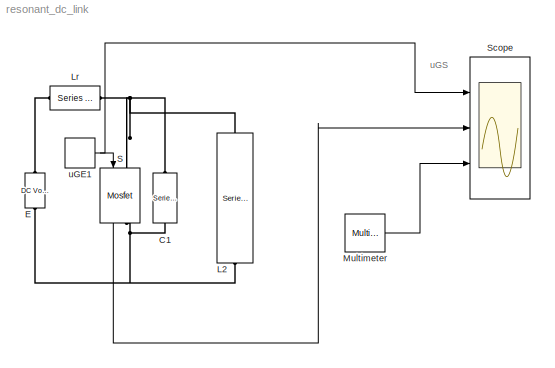
MODEL resonant_dc_link
KIND model
BLOCK [Reference] C1  REF=powerlib/Elements/Series RLC Branch
  AttributesFormatString = \\n
  Capacitance = 1e-6
  Inductance = 0
  LConnTagsString = __new0
  LeftPortType = p1
  Measurements = Branch voltage
  PhysicalDomain = powersysdomain
  Ports = [0, 0, 0, 0, 0, 1, 1]
  RConnTagsString = __new0
  Resistance = 0
  RightPortType = p1
  SourceBlock = powerlib/Elements/Series RLC Branch
  SourceType = Series RLC Branch
  SubClassName = unknown
BLOCK [Reference] E  REF=powerlib/Electrical\nSources/DC Voltage Source
  Amplitude = 50
  AttributesFormatString = \\n
  Description = source block
  Measurements = None
  Ports = [0, 0, 0, 0, 0, 1, 1]
  ShowPortLabels = on
  SourceBlock = powerlib/Electrical\nSources/DC Voltage Source
  SourceType = DC Voltage Source
BLOCK [Reference] L2  REF=powerlib/Elements/Series RLC Branch
  AttributesFormatString = \\n
  Capacitance = inf
  Inductance = 1e-3
  LConnTagsString = __new0
  LeftPortType = p1
  Measurements = Branch current
  PhysicalDomain = powersysdomain
  Ports = [0, 0, 0, 0, 0, 1, 1]
  RConnTagsString = __new0
  Resistance = 1
  RightPortType = p1
  SourceBlock = powerlib/Elements/Series RLC Branch
  SourceType = Series RLC Branch
  SubClassName = unknown
BLOCK [Reference] Lr  REF=powerlib/Elements/Series RLC Branch
  AttributesFormatString = \\n
  Capacitance = inf
  Inductance = 1e-5
  LConnTagsString = __new0
  LeftPortType = p1
  Measurements = Branch current
  PhysicalDomain = powersysdomain
  Ports = [0, 0, 0, 0, 0, 1, 1]
  RConnTagsString = __new0
  Resistance = 0
  RightPortType = p1
  SourceBlock = powerlib/Elements/Series RLC Branch
  SourceType = Series RLC Branch
  SubClassName = unknown
BLOCK [Reference] Multimeter  REF=powerlib/Measurements/Multimeter
  AxesSetting = [0,0.1,-100,100]
  Display = 0
  Gain = [1 1]
  L = 3
  OutputType = Complex
  PSBOutputType = 1
  PSBequivalent = 0
  PhasorSimulation = off
  Ports = [0, 1]
  SavedBlockNames = -11
  ShowPortLabels = on
  SourceBlock = powerlib/Measurements/Multimeter
  SourceType = MultimeterPSB
  sel = [2 3]
  yselected = {'Ib: L2','Ib: Lr'};
BLOCK [Reference] S  REF=powerlib/Power\nElectronics/Mosfet
  Cs = 0
  IC = 0
  Lon = 1e-9
  Measurements = on
  Ports = [1, 1, 0, 0, 0, 1, 1]
  Rd = .1
  Ron = 0.01
  Rs = 100
  ShowPortLabels = on
  SourceBlock = powerlib/Power\nElectronics/Mosfet
  SourceType = Mosfet
BLOCK [Scope] Scope
  DataFormat = StructureWithTime
  MaxDataPoints = 50000
  NumInputPorts = 3
  Ports = [3]
  SaveName = var
  SaveToWorkspace = on
  TimeRange = 0.0001
  YMax = 1.5~150~100
  YMin = -0.5~-50~0
  ZoomMode = xonly
BLOCK [DiscretePulseGenerator] uGE1
  Period = 20e-6
  Ports = [0, 1]
  PulseType = Time based
  PulseWidth = 10
ANNOTATION (root): uGS
LINE Multimeter:1 -> Scope:3
LINE S:1 -> Scope:2
NET uGE1:1 -> S:1, Scope:1
PNET net1: C1:LConn1 -- L2:LConn1 -- Lr:RConn1 -- S:LConn1
PNET net2: C1:RConn1 -- E:LConn1 -- L2:RConn1 -- S:RConn1
PLINE E:RConn1 -- Lr:LConn1
note: NET lines group one-source signal fan-out (src -> all destinations, sorted); 1:1 wires keep LINE; PNET lines group multi-terminal physical nets as a canonical sorted terminal list (undirected conserving connections); 2-terminal nets keep the pairwise PLINE form
